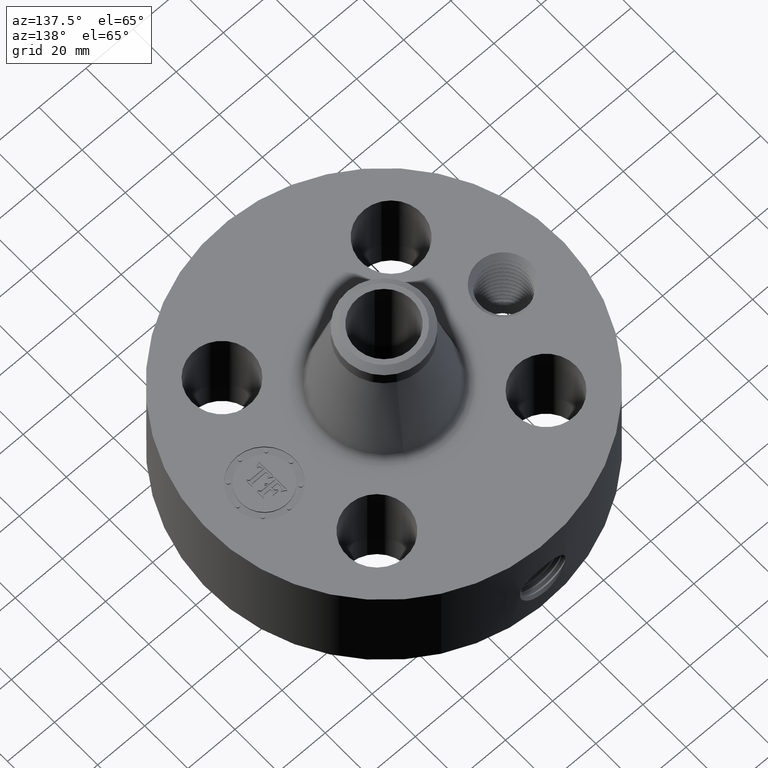
[diagram: clean part render]
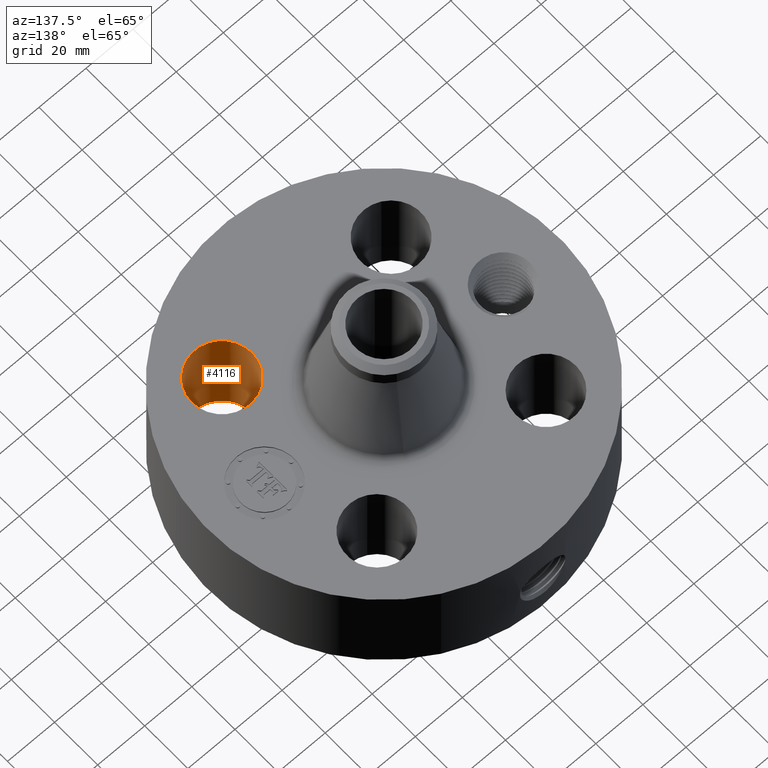
[diagram: same view with one face highlighted and labeled with its STEP entity id]
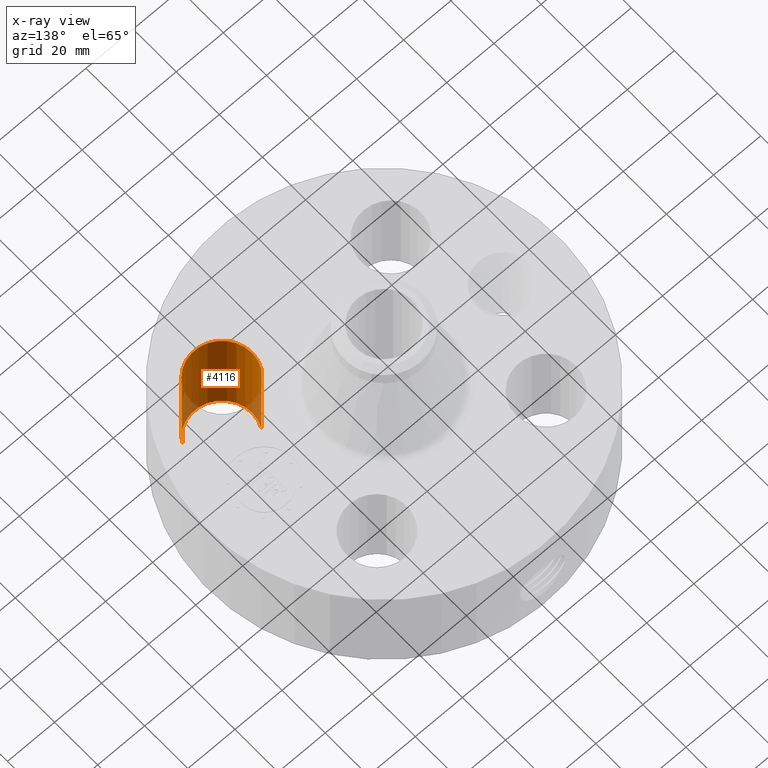
[diagram: x-ray of the same camera — body ghosted, the highlighted face saturated]
A machine part, auxiliary view. The second image highlights one B-rep face of the part: STEP entity #4116.
The next image is the same camera in x-ray: the body ghosted, the highlighted face saturated — about 11% of this face is hidden behind the body in this view.
In plain terms, the highlighted cylindrical surface (partial cylindrical patch) has radius 12.7 mm, axis along (0, -0, -1).
Its self-contained STEP definition (entity closure, byte-faithful):
#2963=AXIS2_PLACEMENT_3D('Circle Axis2P3D',#2961,#2962,$) ;
#4089=AXIS2_PLACEMENT_3D('Cylinder Axis2P3D',#4086,#4087,#4088) ;
#4100=AXIS2_PLACEMENT_3D('Circle Axis2P3D',#4098,#4099,$) ;
#2956=CARTESIAN_POINT('Vertex',(0.975422281432,-1.17450079308,1.75000000001)) ;
#2958=CARTESIAN_POINT('Vertex',(1.85300484333,-1.65392633168,1.75000000001)) ;
#2961=CARTESIAN_POINT('Axis2P3D Location',(1.41421356238,-1.41421356238,1.75000000001)) ;
#4086=CARTESIAN_POINT('Axis2P3D Location',(1.41421356238,-1.41421356238,1.74606299213)) ;
#4091=CARTESIAN_POINT('Line Origine',(1.85300484333,-1.65392633168,0.875000000003)) ;
#4095=CARTESIAN_POINT('Vertex',(1.85300484333,-1.65392633168,0.)) ;
#4098=CARTESIAN_POINT('Axis2P3D Location',(1.41421356238,-1.41421356238,0.)) ;
#4102=CARTESIAN_POINT('Vertex',(0.975422281432,-1.17450079308,0.)) ;
#4105=CARTESIAN_POINT('Line Origine',(0.975422281432,-1.17450079308,0.875000000003)) ;
#2962=DIRECTION('Axis2P3D Direction',(0.,0.,-0.0393700787402)) ;
#4087=DIRECTION('Axis2P3D Direction',(0.,-0.,-0.0393700787402)) ;
#4088=DIRECTION('Axis2P3D XDirection',(-0.0345504945626,0.0188750212049,0.)) ;
#4092=DIRECTION('Vector Direction',(0.,0.,-0.0393700787402)) ;
#4099=DIRECTION('Axis2P3D Direction',(0.,-0.,-0.0393700787402)) ;
#4106=DIRECTION('Vector Direction',(0.,0.,-0.0393700787402)) ;
#4093=VECTOR('Line Direction',#4092,0.0393700787402) ;
#4107=VECTOR('Line Direction',#4106,0.0393700787402) ;
#4111=ORIENTED_EDGE('',*,*,#4097,.F.) ;
#4112=ORIENTED_EDGE('',*,*,#4104,.T.) ;
#4113=ORIENTED_EDGE('',*,*,#4109,.T.) ;
#4114=ORIENTED_EDGE('',*,*,#2965,.F.) ;
#4116=ADVANCED_FACE('PartBody',(#4115),#4090,.F.) ;
#2964=CIRCLE('generated circle',#2963,0.500000000002) ;
#4101=CIRCLE('generated circle',#4100,0.500000000002) ;
#4090=CYLINDRICAL_SURFACE('generated cylinder',#4089,0.500000000002) ;
#2965=EDGE_CURVE('',#2959,#2957,#2964,.T.) ;
#4097=EDGE_CURVE('',#4096,#2959,#4094,.F.) ;
#4104=EDGE_CURVE('',#4096,#4103,#4101,.T.) ;
#4109=EDGE_CURVE('',#4103,#2957,#4108,.F.) ;
#4110=EDGE_LOOP('',(#4111,#4112,#4113,#4114)) ;
#4115=FACE_OUTER_BOUND('',#4110,.T.) ;
#4094=LINE('Line',#4091,#4093) ;
#4108=LINE('Line',#4105,#4107) ;
#2957=VERTEX_POINT('',#2956) ;
#2959=VERTEX_POINT('',#2958) ;
#4096=VERTEX_POINT('',#4095) ;
#4103=VERTEX_POINT('',#4102) ;